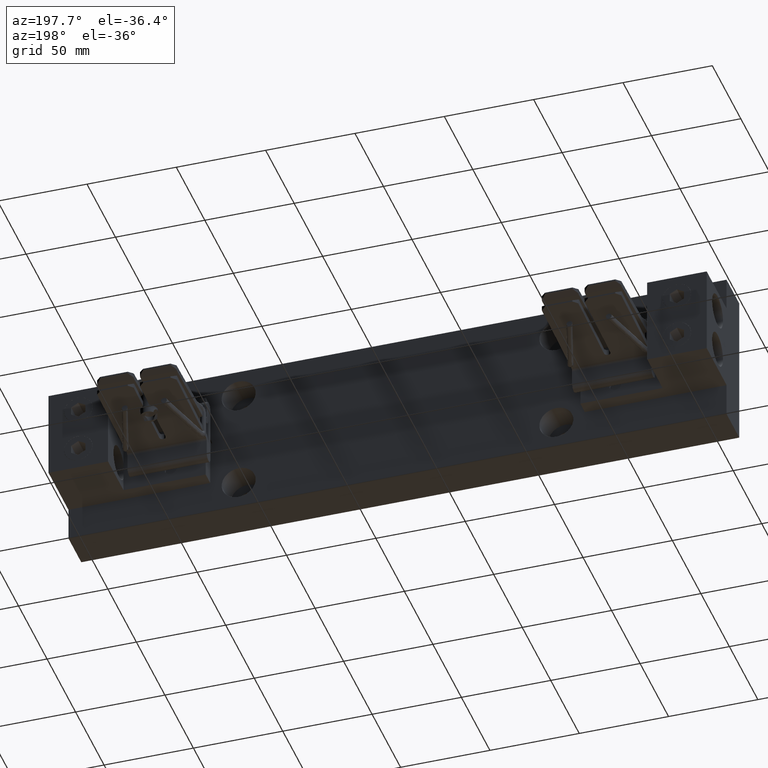
[diagram: clean part render]
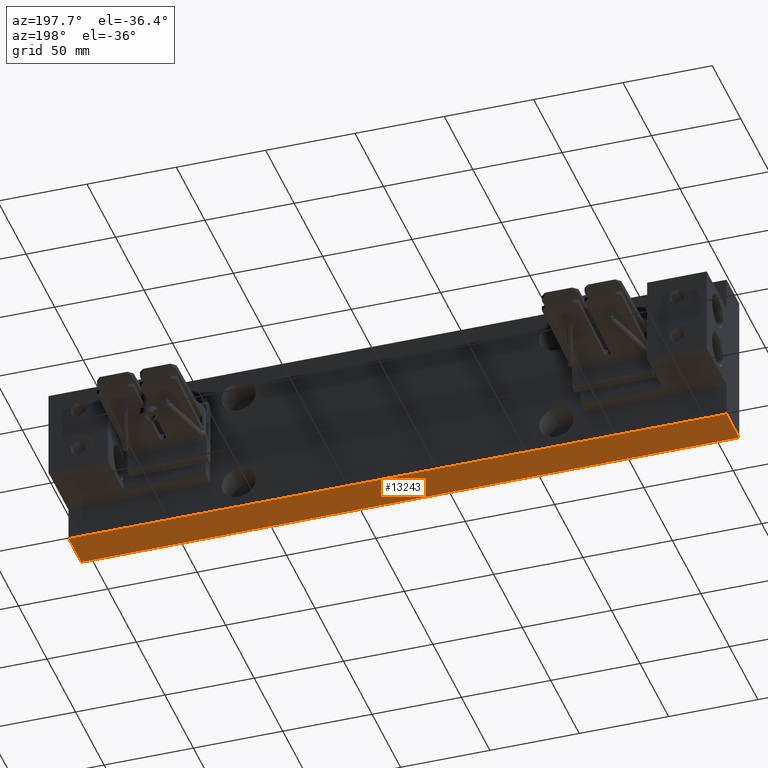
[diagram: same view with one face highlighted and labeled with its STEP entity id]
A machine part, auxiliary view. The second image highlights one B-rep face of the part: STEP entity #13243.
In plain terms, the highlighted planar face has unit normal (0, -0, 1).
Its self-contained STEP definition (entity closure, byte-faithful):
#680 = VECTOR ( 'NONE', #15142, 39.37007874015748100 ) ;
#1185 = DIRECTION ( 'NONE',  ( 1.000000000000000000, 0.0000000000000000000, -1.130419859447281300E-016 ) ) ;
#1278 = ORIENTED_EDGE ( 'NONE', *, *, #8727, .F. ) ;
#1601 = CARTESIAN_POINT ( 'NONE',  ( 12.15000000000000200, -0.3120000000000000000, -1.750000000000001300 ) ) ;
#1928 = CARTESIAN_POINT ( 'NONE',  ( 12.15000000000000200, -1.191999999999999900, -1.750000000000001300 ) ) ;
#2707 = VERTEX_POINT ( 'NONE', #8438 ) ;
#3191 = EDGE_LOOP ( 'NONE', ( #9486, #1278, #20569, #19712 ) ) ;
#3663 = CARTESIAN_POINT ( 'NONE',  ( 12.15000000000000200, -0.3120000000000000000, -1.750000000000001300 ) ) ;
#5671 = VECTOR ( 'NONE', #17180, 39.37007874015748100 ) ;
#7947 = LINE ( 'NONE', #17190, #21959 ) ;
#8382 = LINE ( 'NONE', #1601, #18491 ) ;
#8438 = CARTESIAN_POINT ( 'NONE',  ( -2.349999999999999200, -1.191999999999999900, -1.749999999999999600 ) ) ;
#8727 = EDGE_CURVE ( 'NONE', #9869, #2707, #7947, .T. ) ;
#9486 = ORIENTED_EDGE ( 'NONE', *, *, #21541, .T. ) ;
#9869 = VERTEX_POINT ( 'NONE', #11509 ) ;
#10241 = CARTESIAN_POINT ( 'NONE',  ( 12.15000000000000200, -0.3120000000000000000, -1.750000000000001300 ) ) ;
#11131 = FACE_OUTER_BOUND ( 'NONE', #3191, .T. ) ;
#11164 = AXIS2_PLACEMENT_3D ( 'NONE', #24035, #12565, #1185 ) ;
#11407 = LINE ( 'NONE', #3663, #680 ) ;
#11509 = CARTESIAN_POINT ( 'NONE',  ( -2.349999999999999200, -0.3120000000000000000, -1.749999999999999600 ) ) ;
#12565 = DIRECTION ( 'NONE',  ( 1.130419859447281300E-016, -0.0000000000000000000, 1.000000000000000000 ) ) ;
#13243 = ADVANCED_FACE ( 'NONE', ( #11131 ), #14413, .F. ) ;
#13353 = DIRECTION ( 'NONE',  ( -0.0000000000000000000, -1.000000000000000000, -0.0000000000000000000 ) ) ;
#14413 = PLANE ( 'NONE',  #11164 ) ;
#15142 = DIRECTION ( 'NONE',  ( -1.000000000000000000, 0.0000000000000000000, 1.130419859447281300E-016 ) ) ;
#15397 = EDGE_CURVE ( 'NONE', #23867, #22649, #8382, .T. ) ;
#16780 = DIRECTION ( 'NONE',  ( -0.0000000000000000000, -1.000000000000000000, -0.0000000000000000000 ) ) ;
#17180 = DIRECTION ( 'NONE',  ( -1.000000000000000000, 0.0000000000000000000, 1.130419859447281300E-016 ) ) ;
#17190 = CARTESIAN_POINT ( 'NONE',  ( -2.349999999999999200, -0.3120000000000000000, -1.749999999999999600 ) ) ;
#18491 = VECTOR ( 'NONE', #16780, 39.37007874015748100 ) ;
#19712 = ORIENTED_EDGE ( 'NONE', *, *, #15397, .T. ) ;
#20569 = ORIENTED_EDGE ( 'NONE', *, *, #24121, .F. ) ;
#20859 = LINE ( 'NONE', #1928, #5671 ) ;
#21541 = EDGE_CURVE ( 'NONE', #22649, #2707, #20859, .T. ) ;
#21959 = VECTOR ( 'NONE', #13353, 39.37007874015748100 ) ;
#22649 = VERTEX_POINT ( 'NONE', #24736 ) ;
#23867 = VERTEX_POINT ( 'NONE', #10241 ) ;
#24035 = CARTESIAN_POINT ( 'NONE',  ( 12.15000000000000200, -0.3120000000000000000, -1.750000000000001300 ) ) ;
#24121 = EDGE_CURVE ( 'NONE', #23867, #9869, #11407, .T. ) ;
#24736 = CARTESIAN_POINT ( 'NONE',  ( 12.15000000000000200, -1.191999999999999900, -1.750000000000001300 ) ) ;